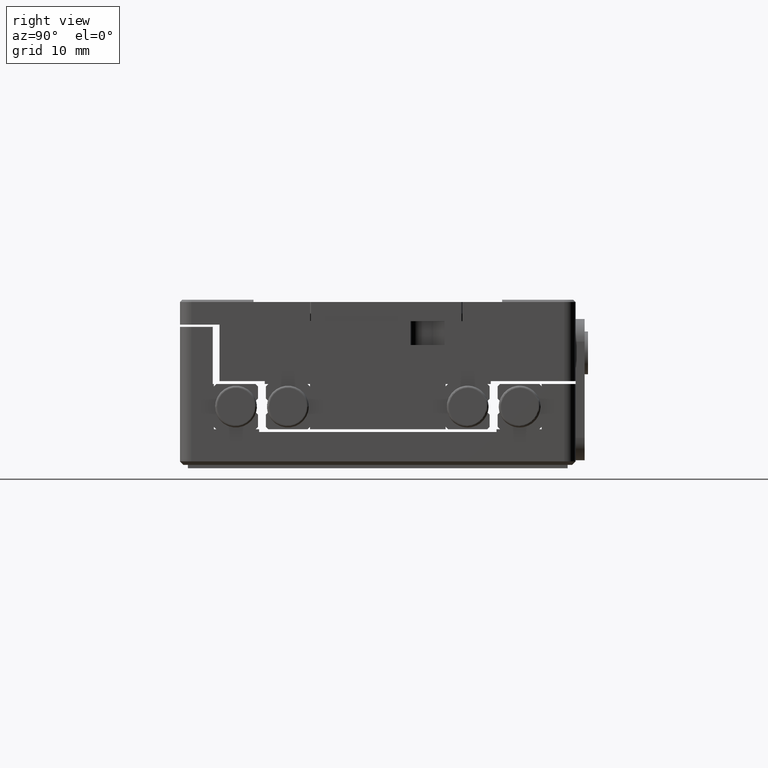
[diagram: clean part render]
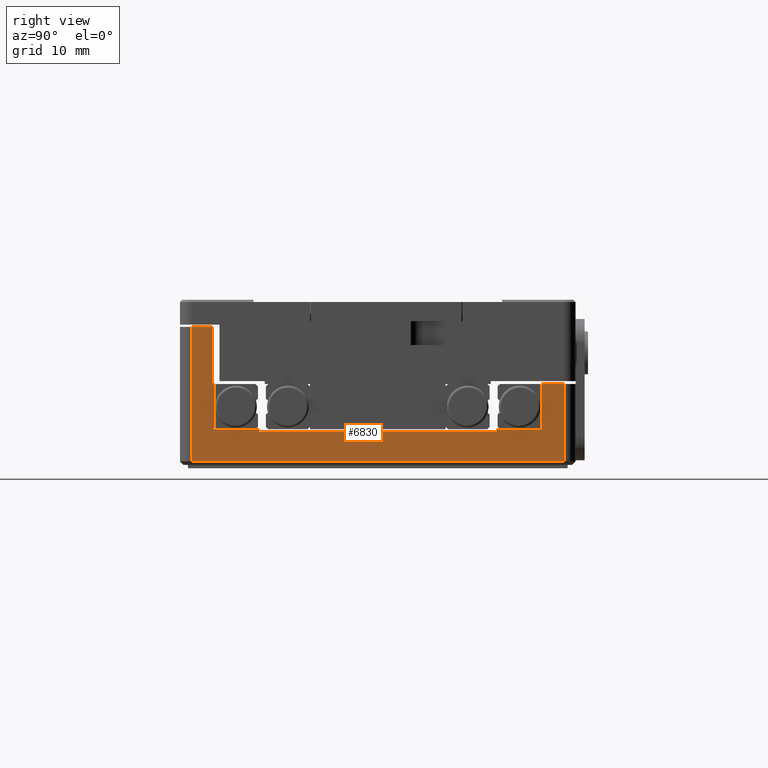
[diagram: same view with one face highlighted and labeled with its STEP entity id]
A machine part, right view. The second image highlights one B-rep face of the part: STEP entity #6830.
In plain terms, the highlighted planar face has unit normal (-1, 0, 0).
Its self-contained STEP definition (entity closure, byte-faithful):
#19 = CARTESIAN_POINT ( 'NONE',  ( 22.62210796915164934, -4.250000000000000000, 18.18251928020564989 ) ) ;
#235 = FACE_OUTER_BOUND ( 'NONE', #12378, .T. ) ;
#236 = VERTEX_POINT ( 'NONE', #8609 ) ;
#268 = ORIENTED_EDGE ( 'NONE', *, *, #9313, .F. ) ;
#521 = VECTOR ( 'NONE', #3135, 1000.000000000000000 ) ;
#584 = CARTESIAN_POINT ( 'NONE',  ( 22.62210796915164934, -4.250000000000000000, 18.18251928020564989 ) ) ;
#596 = CARTESIAN_POINT ( 'NONE',  ( 22.62210796915164934, -0.2500000000000000000, -6.817480719794350108 ) ) ;
#778 = VERTEX_POINT ( 'NONE', #13238 ) ;
#802 = VECTOR ( 'NONE', #910, 1000.000000000000000 ) ;
#857 = DIRECTION ( 'NONE',  ( 0.000000000000000000, -1.000000000000000000, 0.000000000000000000 ) ) ;
#900 = LINE ( 'NONE', #9440, #2867 ) ;
#910 = DIRECTION ( 'NONE',  ( 0.000000000000000000, 0.000000000000000000, -1.000000000000000000 ) ) ;
#1044 = CARTESIAN_POINT ( 'NONE',  ( 22.62210796915164934, -0.2500000000000000000, 18.18251928020564989 ) ) ;
#1046 = CARTESIAN_POINT ( 'NONE',  ( 22.62210796915164934, 0.000000000000000000, 21.18251928020564989 ) ) ;
#1151 = VECTOR ( 'NONE', #857, 1000.000000000000000 ) ;
#1206 = LINE ( 'NONE', #19, #8310 ) ;
#1207 = PLANE ( 'NONE',  #12515 ) ;
#1325 = EDGE_CURVE ( 'NONE', #13521, #778, #7078, .T. ) ;
#1327 = CARTESIAN_POINT ( 'NONE',  ( 22.62210796915164934, -4.250000000000000000, 20.18251928020564989 ) ) ;
#1472 = VECTOR ( 'NONE', #13457, 1000.000000000000000 ) ;
#1505 = VERTEX_POINT ( 'NONE', #1044 ) ;
#1595 = CARTESIAN_POINT ( 'NONE',  ( 22.62210796915164934, 2.600000000000000089, -12.81748071979434123 ) ) ;
#1608 = VERTEX_POINT ( 'NONE', #1595 ) ;
#1698 = CARTESIAN_POINT ( 'NONE',  ( 22.62210796915164934, -0.2500000000000000000, 18.18251928020564989 ) ) ;
#1826 = DIRECTION ( 'NONE',  ( 0.000000000000000000, 1.000000000000000000, 0.000000000000000000 ) ) ;
#1836 = LINE ( 'NONE', #1698, #4026 ) ;
#1903 = CARTESIAN_POINT ( 'NONE',  ( 22.62210796915164934, -9.299999999999998934, -12.81748071979434123 ) ) ;
#1951 = LINE ( 'NONE', #1046, #802 ) ;
#2282 = VERTEX_POINT ( 'NONE', #10320 ) ;
#2483 = CARTESIAN_POINT ( 'NONE',  ( 22.62210796915164934, 2.600000000000000089, 20.18251928020564989 ) ) ;
#2763 = EDGE_CURVE ( 'NONE', #236, #12145, #1951, .T. ) ;
#2867 = VECTOR ( 'NONE', #9514, 1000.000000000000000 ) ;
#2874 = LINE ( 'NONE', #4804, #4909 ) ;
#3135 = DIRECTION ( 'NONE',  ( 0.000000000000000000, -1.000000000000000000, 0.000000000000000000 ) ) ;
#3282 = ORIENTED_EDGE ( 'NONE', *, *, #6946, .F. ) ;
#3767 = CARTESIAN_POINT ( 'NONE',  ( 22.62210796915164934, -4.250000000000000000, -10.91748071979434087 ) ) ;
#3896 = ORIENTED_EDGE ( 'NONE', *, *, #9711, .F. ) ;
#3985 = LINE ( 'NONE', #13597, #1472 ) ;
#4026 = VECTOR ( 'NONE', #7095, 1000.000000000000000 ) ;
#4073 = VECTOR ( 'NONE', #10741, 1000.000000000000000 ) ;
#4189 = DIRECTION ( 'NONE',  ( 0.000000000000000000, 1.000000000000000000, 0.000000000000000000 ) ) ;
#4291 = CARTESIAN_POINT ( 'NONE',  ( 22.62210796915164934, -0.2500000000000000000, -10.81748071979434123 ) ) ;
#4398 = CARTESIAN_POINT ( 'NONE',  ( 22.62210796915164934, 2.899999999999999911, 21.18251928020564989 ) ) ;
#4567 = CARTESIAN_POINT ( 'NONE',  ( 22.62210796915164934, -4.250000000000000000, -10.81748071979434123 ) ) ;
#4692 = ORIENTED_EDGE ( 'NONE', *, *, #10929, .T. ) ;
#4742 = CARTESIAN_POINT ( 'NONE',  ( 22.62210796915164934, -4.250000000000000000, 18.18251928020564989 ) ) ;
#4804 = CARTESIAN_POINT ( 'NONE',  ( 22.62210796915164934, -0.2500000000000000000, 14.18251928020566055 ) ) ;
#4909 = VECTOR ( 'NONE', #1826, 1000.000000000000000 ) ;
#5142 = EDGE_CURVE ( 'NONE', #1608, #2282, #9918, .T. ) ;
#5280 = VECTOR ( 'NONE', #5501, 1000.000000000000000 ) ;
#5501 = DIRECTION ( 'NONE',  ( 0.000000000000000000, 0.000000000000000000, 1.000000000000000000 ) ) ;
#6129 = LINE ( 'NONE', #10373, #1151 ) ;
#6206 = VERTEX_POINT ( 'NONE', #12567 ) ;
#6750 = CARTESIAN_POINT ( 'NONE',  ( 22.62210796915164934, -0.2500000000000000000, 14.18251928020566055 ) ) ;
#6784 = VERTEX_POINT ( 'NONE', #1903 ) ;
#6830 = ADVANCED_FACE ( 'NONE', ( #235 ), #1207, .F. ) ;
#6857 = VERTEX_POINT ( 'NONE', #6750 ) ;
#6946 = EDGE_CURVE ( 'NONE', #13521, #12009, #7926, .T. ) ;
#6969 = VERTEX_POINT ( 'NONE', #584 ) ;
#6993 = EDGE_CURVE ( 'NONE', #6969, #1505, #9060, .T. ) ;
#7078 = LINE ( 'NONE', #7281, #521 ) ;
#7089 = CARTESIAN_POINT ( 'NONE',  ( 22.62210796915164934, -4.250000000000000000, -10.91748071979434087 ) ) ;
#7095 = DIRECTION ( 'NONE',  ( 0.000000000000000000, 0.000000000000000000, 1.000000000000000000 ) ) ;
#7109 = ORIENTED_EDGE ( 'NONE', *, *, #5142, .T. ) ;
#7281 = CARTESIAN_POINT ( 'NONE',  ( 22.62210796915164934, -4.250000000000000000, -10.91748071979434087 ) ) ;
#7288 = DIRECTION ( 'NONE',  ( 0.000000000000000000, 1.000000000000000000, 0.000000000000000000 ) ) ;
#7693 = ORIENTED_EDGE ( 'NONE', *, *, #9110, .F. ) ;
#7926 = LINE ( 'NONE', #7089, #8286 ) ;
#7961 = CARTESIAN_POINT ( 'NONE',  ( 22.62210796915164934, 0.000000000000000000, -6.817480719794350108 ) ) ;
#8286 = VECTOR ( 'NONE', #13232, 1000.000000000000000 ) ;
#8310 = VECTOR ( 'NONE', #9682, 1000.000000000000000 ) ;
#8342 = LINE ( 'NONE', #12596, #12188 ) ;
#8361 = EDGE_CURVE ( 'NONE', #12965, #6206, #900, .T. ) ;
#8609 = CARTESIAN_POINT ( 'NONE',  ( 22.62210796915164934, 0.000000000000000000, 14.18251928020563923 ) ) ;
#8847 = CARTESIAN_POINT ( 'NONE',  ( 22.62210796915164934, -9.299999999999998934, -13.81748071979434123 ) ) ;
#8848 = ORIENTED_EDGE ( 'NONE', *, *, #8361, .F. ) ;
#9060 = LINE ( 'NONE', #4742, #10282 ) ;
#9110 = EDGE_CURVE ( 'NONE', #6206, #12145, #10109, .T. ) ;
#9313 = EDGE_CURVE ( 'NONE', #6784, #778, #11914, .T. ) ;
#9440 = CARTESIAN_POINT ( 'NONE',  ( 22.62210796915164934, -0.2500000000000000000, -10.81748071979434123 ) ) ;
#9514 = DIRECTION ( 'NONE',  ( 0.000000000000000000, 0.000000000000000000, 1.000000000000000000 ) ) ;
#9682 = DIRECTION ( 'NONE',  ( 0.000000000000000000, 0.000000000000000000, 1.000000000000000000 ) ) ;
#9711 = EDGE_CURVE ( 'NONE', #12009, #12965, #8342, .T. ) ;
#9918 = LINE ( 'NONE', #2483, #4073 ) ;
#10029 = DIRECTION ( 'NONE',  ( 0.000000000000000000, 1.000000000000000000, 0.000000000000000000 ) ) ;
#10109 = LINE ( 'NONE', #596, #11279 ) ;
#10146 = VERTEX_POINT ( 'NONE', #1327 ) ;
#10162 = ORIENTED_EDGE ( 'NONE', *, *, #2763, .T. ) ;
#10227 = ORIENTED_EDGE ( 'NONE', *, *, #1325, .T. ) ;
#10282 = VECTOR ( 'NONE', #10029, 1000.000000000000000 ) ;
#10320 = CARTESIAN_POINT ( 'NONE',  ( 22.62210796915164934, 2.600000000000000089, 20.18251928020564989 ) ) ;
#10373 = CARTESIAN_POINT ( 'NONE',  ( 22.62210796915164934, 2.899999999999999911, 20.18251928020564989 ) ) ;
#10741 = DIRECTION ( 'NONE',  ( 0.000000000000000000, 0.000000000000000000, 1.000000000000000000 ) ) ;
#10929 = EDGE_CURVE ( 'NONE', #6784, #1608, #3985, .T. ) ;
#11279 = VECTOR ( 'NONE', #4189, 1000.000000000000000 ) ;
#11306 = ORIENTED_EDGE ( 'NONE', *, *, #6993, .T. ) ;
#11343 = ORIENTED_EDGE ( 'NONE', *, *, #13720, .F. ) ;
#11555 = ORIENTED_EDGE ( 'NONE', *, *, #13153, .F. ) ;
#11914 = LINE ( 'NONE', #8847, #5280 ) ;
#11917 = DIRECTION ( 'NONE',  ( 0.000000000000000000, 0.000000000000000000, 1.000000000000000000 ) ) ;
#12009 = VERTEX_POINT ( 'NONE', #4567 ) ;
#12145 = VERTEX_POINT ( 'NONE', #7961 ) ;
#12188 = VECTOR ( 'NONE', #7288, 1000.000000000000000 ) ;
#12278 = ORIENTED_EDGE ( 'NONE', *, *, #13715, .T. ) ;
#12378 = EDGE_LOOP ( 'NONE', ( #3282, #10227, #268, #4692, #7109, #12278, #11555, #11306, #11343, #12732, #10162, #7693, #8848, #3896 ) ) ;
#12515 = AXIS2_PLACEMENT_3D ( 'NONE', #4398, #12824, #11917 ) ;
#12567 = CARTESIAN_POINT ( 'NONE',  ( 22.62210796915164934, -0.2500000000000000000, -6.817480719794350108 ) ) ;
#12596 = CARTESIAN_POINT ( 'NONE',  ( 22.62210796915164934, -9.299999999999998934, -10.81748071979434123 ) ) ;
#12732 = ORIENTED_EDGE ( 'NONE', *, *, #13490, .T. ) ;
#12824 = DIRECTION ( 'NONE',  ( -1.000000000000000000, 0.000000000000000000, 0.000000000000000000 ) ) ;
#12965 = VERTEX_POINT ( 'NONE', #4291 ) ;
#13153 = EDGE_CURVE ( 'NONE', #6969, #10146, #1206, .T. ) ;
#13232 = DIRECTION ( 'NONE',  ( 0.000000000000000000, 0.000000000000000000, 1.000000000000000000 ) ) ;
#13238 = CARTESIAN_POINT ( 'NONE',  ( 22.62210796915164934, -9.299999999999998934, -10.91748071979434087 ) ) ;
#13457 = DIRECTION ( 'NONE',  ( 0.000000000000000000, 1.000000000000000000, 0.000000000000000000 ) ) ;
#13490 = EDGE_CURVE ( 'NONE', #6857, #236, #2874, .T. ) ;
#13521 = VERTEX_POINT ( 'NONE', #3767 ) ;
#13597 = CARTESIAN_POINT ( 'NONE',  ( 22.62210796915164934, 2.899999999999999911, -12.81748071979434123 ) ) ;
#13715 = EDGE_CURVE ( 'NONE', #2282, #10146, #6129, .T. ) ;
#13720 = EDGE_CURVE ( 'NONE', #6857, #1505, #1836, .T. ) ;